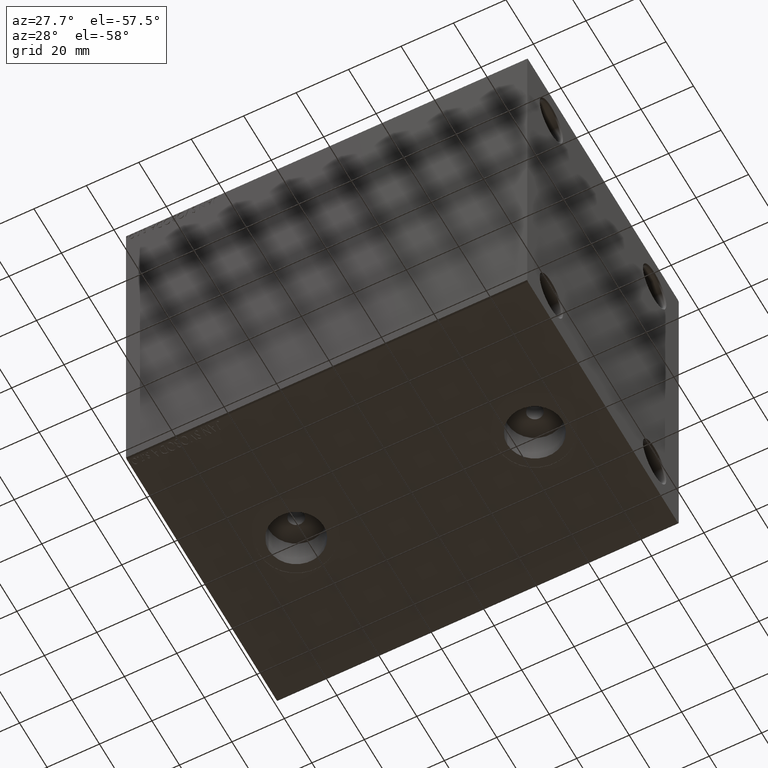
[diagram: clean part render]
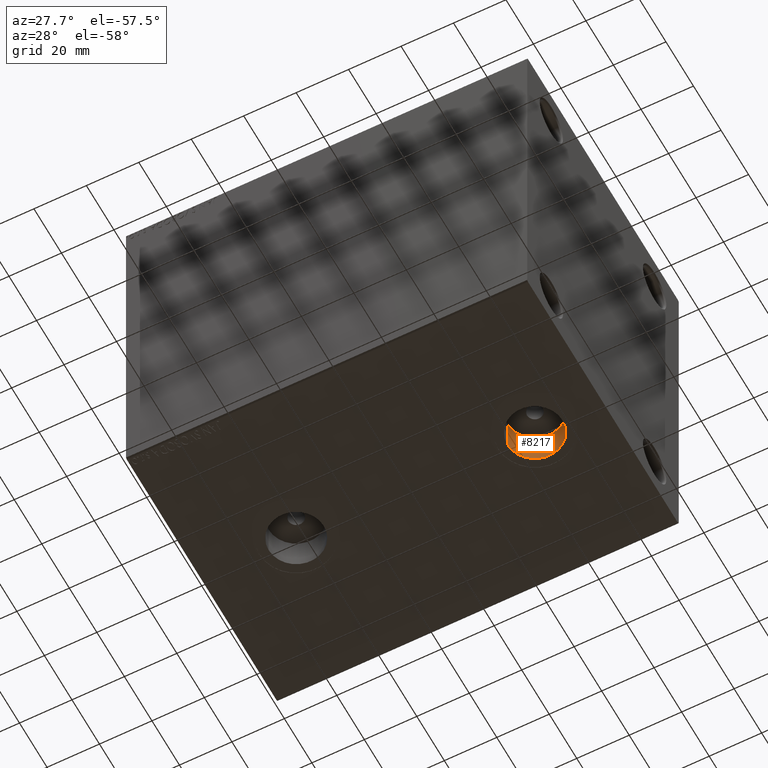
[diagram: same view with one face highlighted and labeled with its STEP entity id]
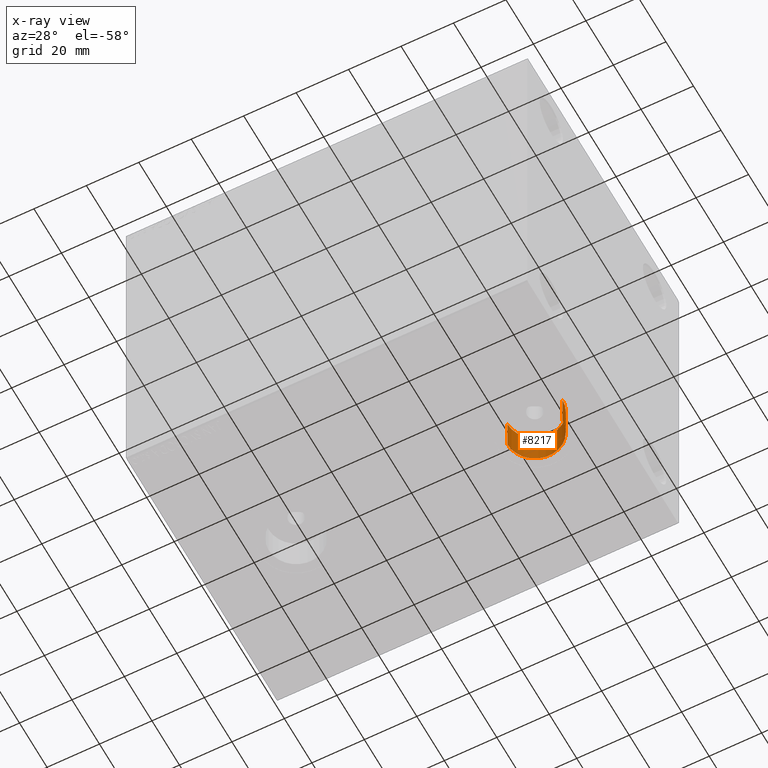
[diagram: x-ray of the same camera — body ghosted, the highlighted face saturated]
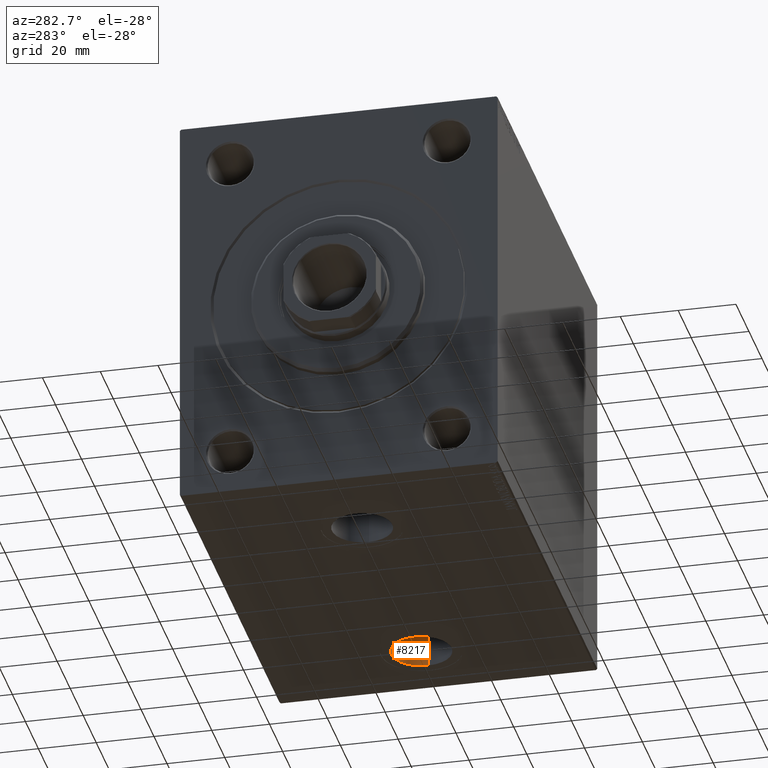
[diagram: same view with one face highlighted and labeled with its STEP entity id]
A machine part, auxiliary view. The second image highlights one B-rep face of the part: STEP entity #8217.
The next image is the same camera in x-ray: the body ghosted, the highlighted face saturated — about 0% of this face is hidden behind the body in this view.
A second angle (auxiliary view) of the same face is appended — the face is thin or edge-on in the first view.
In plain terms, the highlighted cylindrical surface (edge-blend (fillet) strip) has radius 10.48 mm, axis along (-0, -0, -1).
Its self-contained STEP definition (entity closure, byte-faithful):
#1273 = AXIS2_PLACEMENT_3D ( 'NONE', #39834, #17888, #22029 ) ;
#3420 = CARTESIAN_POINT ( 'NONE',  ( 137.4799999999999898, -2.612747753614357256E-15, -69.90000000000000568 ) ) ;
#3893 = DIRECTION ( 'NONE',  ( 0.000000000000000000, 0.000000000000000000, -1.000000000000000000 ) ) ;
#4487 = FACE_OUTER_BOUND ( 'NONE', #13840, .T. ) ;
#7281 = EDGE_CURVE ( 'NONE', #23834, #22277, #40334, .T. ) ;
#8217 = ADVANCED_FACE ( 'NONE', ( #4487 ), #43076, .F. ) ;
#8927 = EDGE_CURVE ( 'NONE', #23834, #31028, #31967, .T. ) ;
#10483 = DIRECTION ( 'NONE',  ( -0.000000000000000000, -0.000000000000000000, -1.000000000000000000 ) ) ;
#11672 = LINE ( 'NONE', #15594, #40355 ) ;
#12720 = EDGE_CURVE ( 'NONE', #22277, #23779, #11672, .T. ) ;
#13840 = EDGE_LOOP ( 'NONE', ( #35672, #43541, #42952, #32125 ) ) ;
#15594 = CARTESIAN_POINT ( 'NONE',  ( 137.4799999999999898, -2.612747753614358439E-15, -57.00000000000000000 ) ) ;
#15996 = DIRECTION ( 'NONE',  ( -1.000000000000000000, 0.000000000000000000, 0.000000000000000000 ) ) ;
#17888 = DIRECTION ( 'NONE',  ( -0.000000000000000000, -0.000000000000000000, -1.000000000000000000 ) ) ;
#20136 = DIRECTION ( 'NONE',  ( 0.000000000000000000, 0.000000000000000000, -1.000000000000000000 ) ) ;
#22029 = DIRECTION ( 'NONE',  ( -1.000000000000000000, 0.000000000000000000, 0.000000000000000000 ) ) ;
#22277 = VERTEX_POINT ( 'NONE', #36515 ) ;
#23779 = VERTEX_POINT ( 'NONE', #3420 ) ;
#23834 = VERTEX_POINT ( 'NONE', #42005 ) ;
#25999 = EDGE_CURVE ( 'NONE', #31028, #23779, #33844, .T. ) ;
#26425 = CARTESIAN_POINT ( 'NONE',  ( 116.5199999999999960, -3.896177599120784322E-15, -69.90000000000000568 ) ) ;
#26858 = CARTESIAN_POINT ( 'NONE',  ( 127.0000000000000000, -3.896177599120784322E-15, -57.00000000000000000 ) ) ;
#27573 = CARTESIAN_POINT ( 'NONE',  ( 116.5199999999999960, -3.896177599120784322E-15, -57.00000000000000000 ) ) ;
#29686 = DIRECTION ( 'NONE',  ( -0.000000000000000000, -0.000000000000000000, -1.000000000000000000 ) ) ;
#30151 = AXIS2_PLACEMENT_3D ( 'NONE', #35552, #3893, #32081 ) ;
#31028 = VERTEX_POINT ( 'NONE', #26425 ) ;
#31967 = LINE ( 'NONE', #27573, #35945 ) ;
#32081 = DIRECTION ( 'NONE',  ( -1.000000000000000000, 0.000000000000000000, 0.000000000000000000 ) ) ;
#32125 = ORIENTED_EDGE ( 'NONE', *, *, #25999, .T. ) ;
#32950 = AXIS2_PLACEMENT_3D ( 'NONE', #26858, #20136, #15996 ) ;
#33844 = CIRCLE ( 'NONE', #30151, 10.48000000000000398 ) ;
#35552 = CARTESIAN_POINT ( 'NONE',  ( 127.0000000000000000, -3.896177599120784322E-15, -69.90000000000000568 ) ) ;
#35672 = ORIENTED_EDGE ( 'NONE', *, *, #12720, .F. ) ;
#35945 = VECTOR ( 'NONE', #10483, 1000.000000000000000 ) ;
#36515 = CARTESIAN_POINT ( 'NONE',  ( 137.4799999999999898, -2.612747753614357256E-15, -57.00000000000000000 ) ) ;
#39834 = CARTESIAN_POINT ( 'NONE',  ( 127.0000000000000000, -3.896177599120784322E-15, -57.00000000000000000 ) ) ;
#40334 = CIRCLE ( 'NONE', #32950, 10.48000000000000398 ) ;
#40355 = VECTOR ( 'NONE', #29686, 1000.000000000000000 ) ;
#42005 = CARTESIAN_POINT ( 'NONE',  ( 116.5199999999999960, -3.896177599120784322E-15, -57.00000000000000000 ) ) ;
#42952 = ORIENTED_EDGE ( 'NONE', *, *, #8927, .T. ) ;
#43076 = CYLINDRICAL_SURFACE ( 'NONE', #1273, 10.48000000000000398 ) ;
#43541 = ORIENTED_EDGE ( 'NONE', *, *, #7281, .F. ) ;